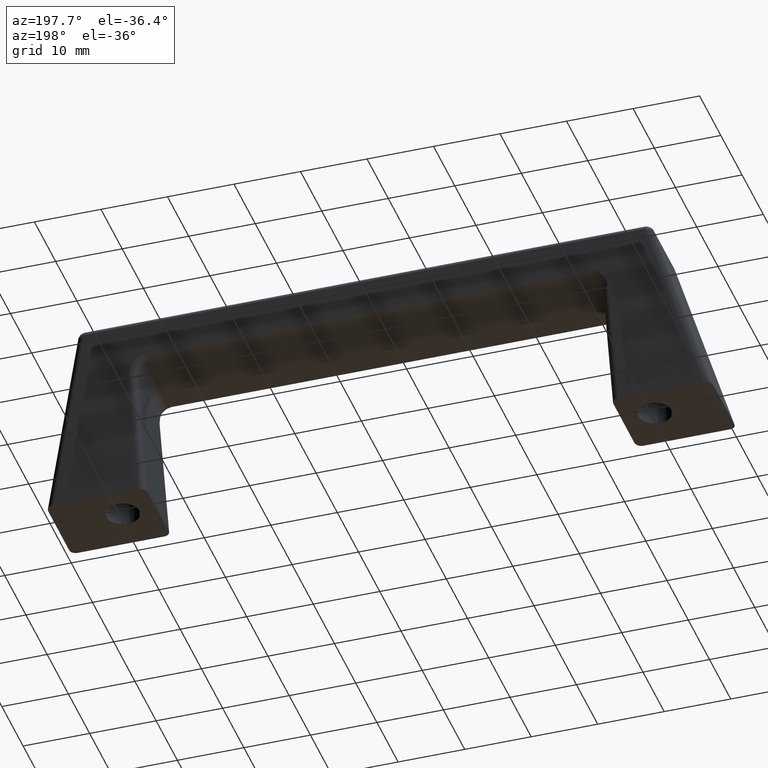
[diagram: clean part render]
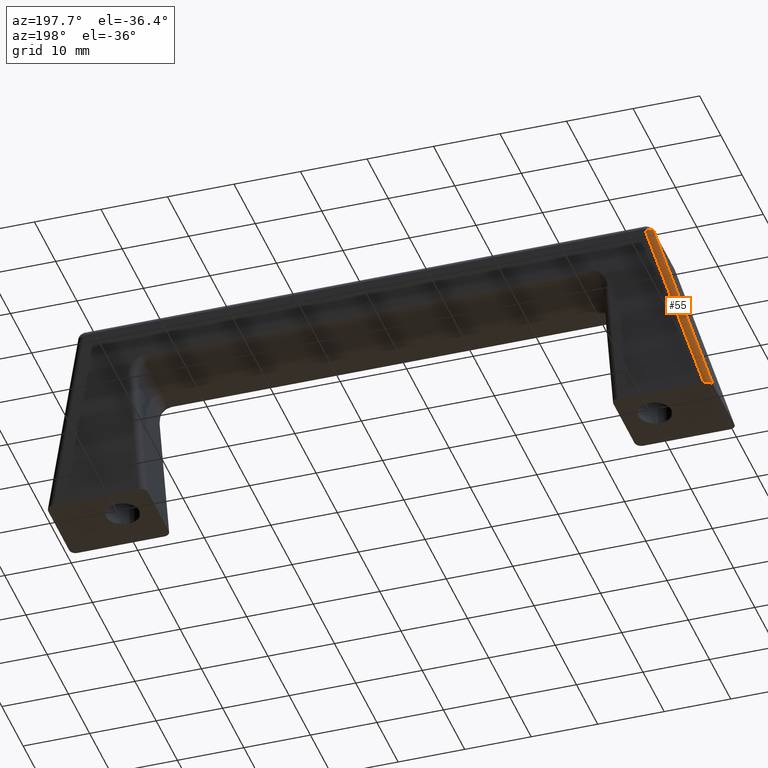
[diagram: same view with one face highlighted and labeled with its STEP entity id]
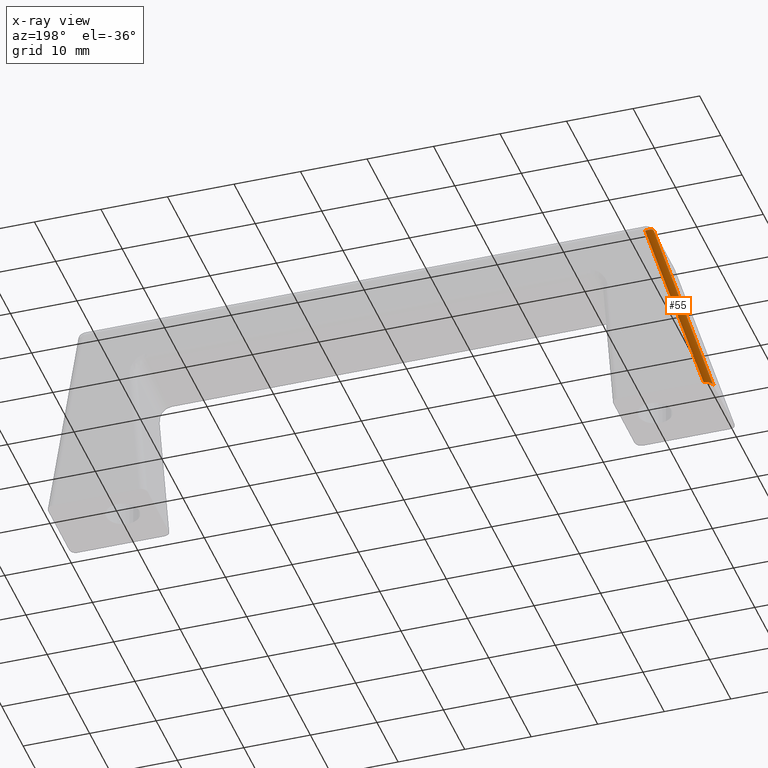
[diagram: x-ray of the same camera — body ghosted, the highlighted face saturated]
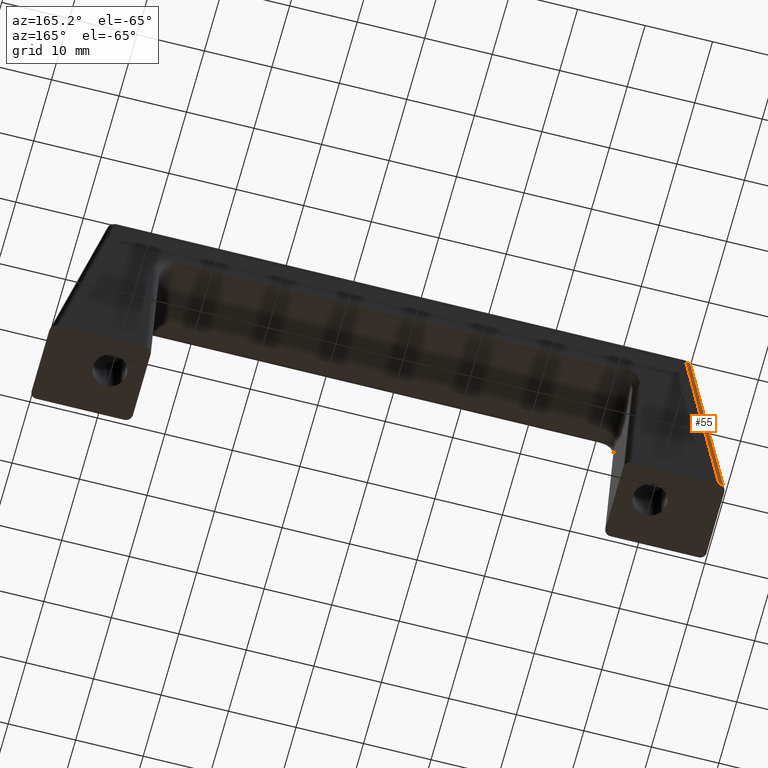
[diagram: same view with one face highlighted and labeled with its STEP entity id]
A machine part, auxiliary view. The second image highlights one B-rep face of the part: STEP entity #55.
The next image is the same camera in x-ray: the body ghosted, the highlighted face saturated — about 0% of this face is hidden behind the body in this view.
A second angle (auxiliary view) of the same face is appended — the face is thin or edge-on in the first view.
In plain terms, the highlighted cylindrical surface (edge-blend (fillet) strip) has radius 1 mm, axis along (-0.2603, -0.2603, -0.9298).
Its self-contained STEP definition (entity closure, byte-faithful):
#55=ADVANCED_FACE('',(#231),#230,.T.);
#230=CYLINDRICAL_SURFACE('',#1055,1.00000000000E+00);
#231=FACE_OUTER_BOUND('',#1056,.T.);
#1052=CARTESIAN_POINT('',(-4.92111669560E+01,1.07119292567E+01,-8.91535418815E-01));
#1053=DIRECTION('',(-2.60330292006E-01,-2.60318450535E-01,-9.29764724742E-01));
#1054=DIRECTION('',(-2.52743572163E-02,-9.60800917297E-01,2.76084777177E-01));
#1055=AXIS2_PLACEMENT_3D('',#1052,#1053,#1054);
#1056=EDGE_LOOP('',(#1642,#1643,#1644,#1645));
#1642=ORIENTED_EDGE('',*,*,#1815,.F.);
#1643=ORIENTED_EDGE('',*,*,#1816,.F.);
#1644=ORIENTED_EDGE('',*,*,#1813,.F.);
#1645=ORIENTED_EDGE('',*,*,#1817,.F.);
#1813=EDGE_CURVE('',#2127,#2147,#2148,.T.);
#1815=EDGE_CURVE('',#2160,#2161,#2162,.T.);
#1816=EDGE_CURVE('',#2147,#2160,#2168,.T.);
#1817=EDGE_CURVE('',#2161,#2127,#2174,.T.);
#2127=VERTEX_POINT('',#2644);
#2147=VERTEX_POINT('',#2656);
#2148=CIRCLE('',#2660,1.00000000000E+00);
#2160=VERTEX_POINT('',#2665);
#2161=VERTEX_POINT('',#2666);
#2162=(BOUNDED_CURVE() B_SPLINE_CURVE(2,(#2667,#2668,#2669,#2670,#2671),.UNSPECIFIED.,.F.,.F.) B_SPLINE_CURVE_WITH_KNOTS((3,2,3),(0.00000000000E+00,5.00000000000E-01,1.00000000000E+00),.UNSPECIFIED.) CURVE() GEOMETRIC_REPRESENTATION_ITEM() RATIONAL_B_SPLINE_CURVE((1.00000000000E+00,9.16766121391E-01,1.00000000000E+00,9.16766121391E-01,1.00000000000E+00)) REPRESENTATION_ITEM('') );
#2168=LINE('',#2672,#2673);
#2174=LINE('',#2675,#2676);
#2644=CARTESIAN_POINT('',(-4.22416395996E+01,1.86441078289E+01,2.37303851265E+01));
#2656=CARTESIAN_POINT('',(-4.32046046495E+01,1.76811395948E+01,2.42696262463E+01));
#2657=CARTESIAN_POINT('',(-4.22416395996E+01,1.76811395948E+01,2.40000000000E+01));
#2658=DIRECTION('',(2.60330292006E-01,2.60318450535E-01,9.29764724742E-01));
#2659=DIRECTION('',(7.10542735760E-15,-9.62968234158E-01,2.69614873483E-01));
#2660=AXIS2_PLACEMENT_3D('',#2657,#2658,#2659);
#2665=CARTESIAN_POINT('',(-5.00000000000E+01,1.08860533419E+01,0.00000000000E+00));
#2666=CARTESIAN_POINT('',(-4.88860496584E+01,1.20000000000E+01,0.00000000000E+00));
#2667=CARTESIAN_POINT('',(-5.00000000000E+01,1.08860533419E+01,2.77555800000E-14));
#2668=CARTESIAN_POINT('',(-5.00000000000E+01,1.13372995162E+01,2.77555800000E-14));
#2669=CARTESIAN_POINT('',(-4.96686486624E+01,1.16686497581E+01,2.77555800000E-14));
#2670=CARTESIAN_POINT('',(-4.93372973248E+01,1.20000000000E+01,2.77555800000E-14));
#2671=CARTESIAN_POINT('',(-4.88860496584E+01,1.20000000000E+01,2.77555800000E-14));
#2672=CARTESIAN_POINT('',(-4.32046046495E+01,1.76811395948E+01,2.42696262463E+01));
#2673=VECTOR('',#2674,2.61029759469E+01);
#2674=DIRECTION('',(-2.60330292006E-01,-2.60318450535E-01,-9.29764724742E-01));
#2675=CARTESIAN_POINT('',(-4.88860496584E+01,1.20000000000E+01,0.00000000000E+00));
#2676=VECTOR('',#2677,2.55230000612E+01);
#2677=DIRECTION('',(2.60330292006E-01,2.60318450535E-01,9.29764724742E-01));